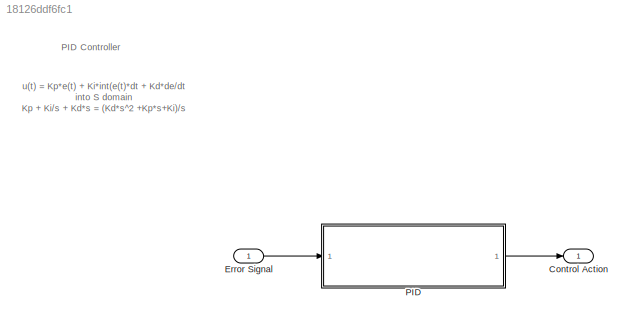
MODEL slx_18126ddf6fc1
KIND model
CONFIG AbsTol = auto
CONFIG EnableMultiTasking = off
CONFIG FixedStep = auto
CONFIG MaxStep = 0.01
CONFIG MinStep = auto
CONFIG RelTol = 1e-3
CONFIG SampleTimeConstraint = Unconstrained
CONFIG Solver = VariableStepAuto
CONFIG SolverName = VariableStepAuto
CONFIG StartTime = 0.0
CONFIG StopTime = 10.0
BLOCK [Outport] Control Action
BLOCK [Inport] Error Signal
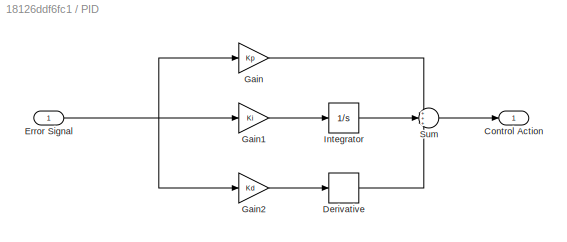
BLOCK [SubSystem] PID
  Ports = [1, 1]
  RequestExecContextInheritance = off
BLOCK [Outport] PID/Control Action
BLOCK [Derivative] PID/Derivative
BLOCK [Inport] PID/Error Signal
BLOCK [Gain] PID/Gain
  Gain = Kp
BLOCK [Gain] PID/Gain1
  Gain = Ki
BLOCK [Gain] PID/Gain2
  Gain = Kd
BLOCK [Integrator] PID/Integrator
  Ports = [1, 1]
BLOCK [Sum] PID/Sum
  Inputs = +++
  Ports = [3, 1]
ANNOTATION (root): PID Controller
ANNOTATION (root): u(t) = Kp*e(t) + Ki*int(e(t)*dt + Kd*de/dt into S domain Kp + Ki/s + Kd*s = (Kd*s^2 +Kp*s+Ki)/s
LINE Error Signal:1 -> PID:1
LINE PID/Derivative:1 -> PID/Sum:3
NET PID/Error Signal:1 -> PID/Gain1:1, PID/Gain2:1, PID/Gain:1
LINE PID/Gain1:1 -> PID/Integrator:1
LINE PID/Gain2:1 -> PID/Derivative:1
LINE PID/Gain:1 -> PID/Sum:1
LINE PID/Integrator:1 -> PID/Sum:2
LINE PID/Sum:1 -> PID/Control Action:1
LINE PID:1 -> Control Action:1
note: NET lines group one-source signal fan-out (src -> all destinations, sorted); 1:1 wires keep LINE
